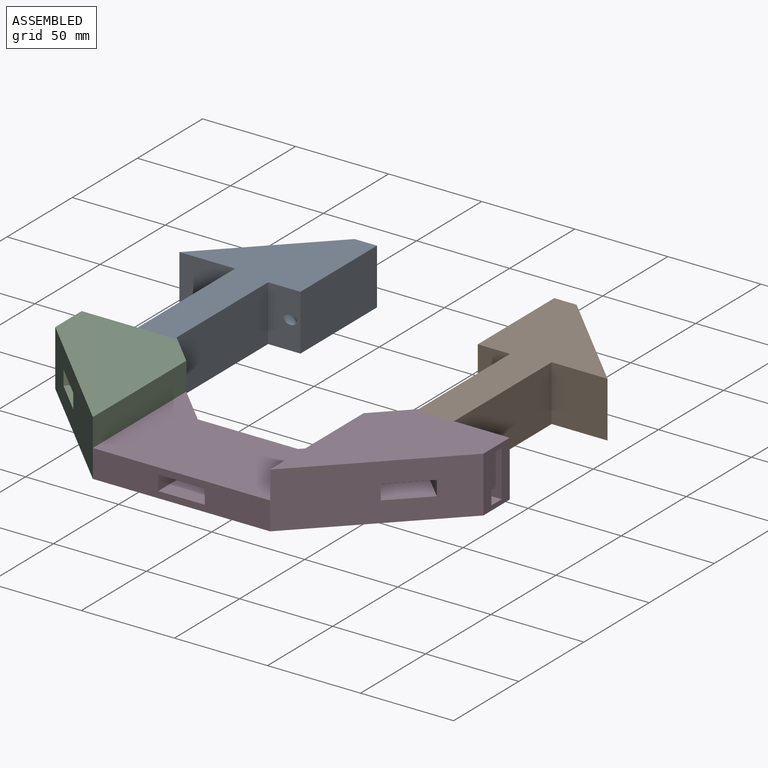
[diagram: assembled view]
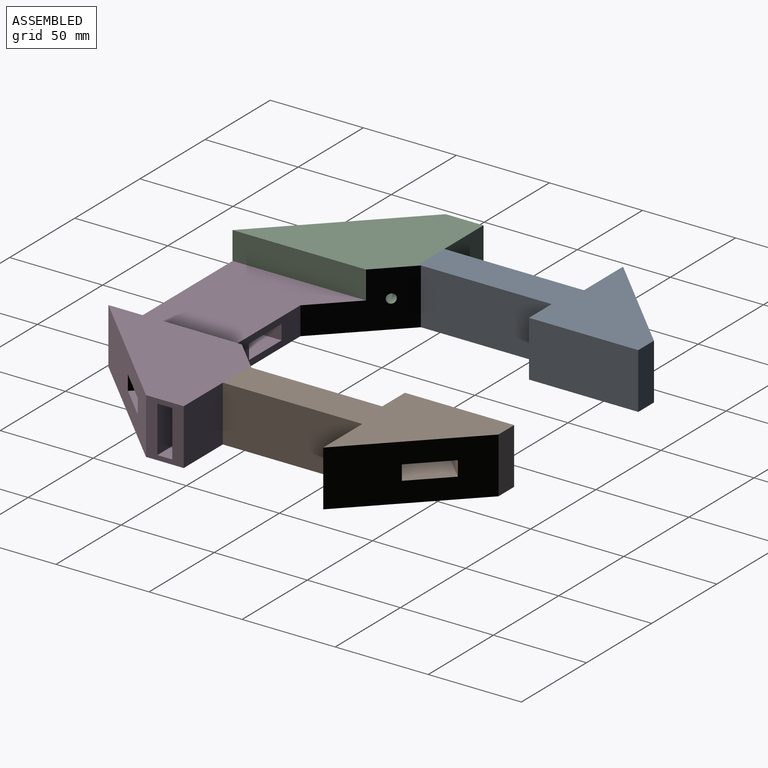
[diagram: assembled view, second angle]
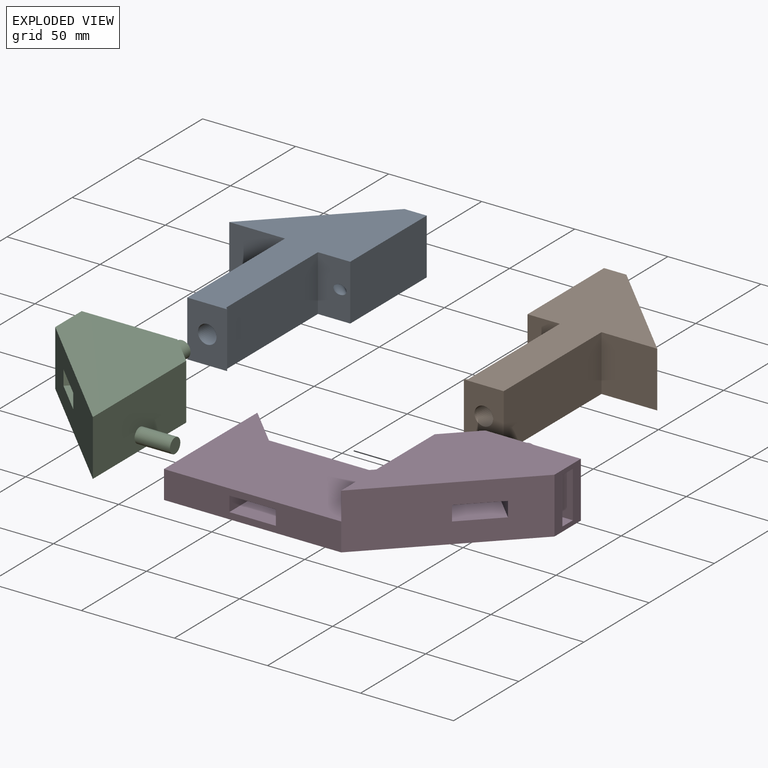
[diagram: exploded view]
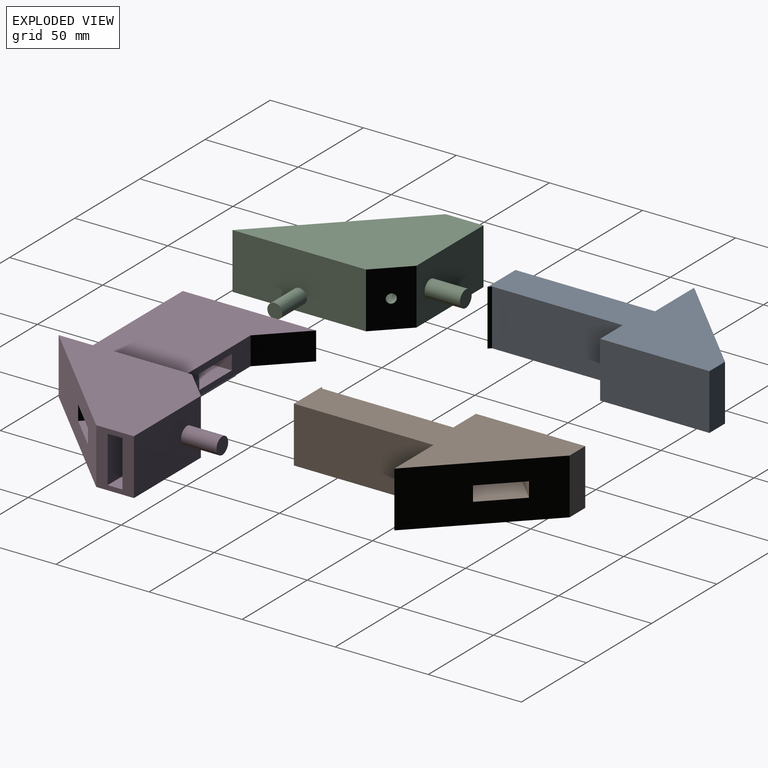
[diagram: exploded view, second angle]
ASSEMBLY  parts=4 mates=3
PART A: 19 faces, bbox 67.4x130.4x30 mm
  f0: plane 130.37x67.37mm, normal (0,0,-1), area 3756.1mm2, adj f1,f2,f4,f5,f6,f13,f14,f15
  f1: plane 55.37x55.37mm, normal (-0.71,0.71,0), area 2149mm2, adj f0,f3,f7,f8,f9,f10,f14,f15
  f2: plane 58.71x30mm, normal (1,0,0), area 1761.3mm2, adj f0,f3,f6,f15
  f3: plane 130.37x67.37mm, normal (0,0,1), area 3756.1mm2, adj f1,f2,f4,f5,f6,f13,f14,f15
  f4: plane 30x1.41mm, normal (0.71,0.71,0), area 59.6mm2, adj f0,f3,f5,f16
  f5: plane 70.25x30mm, normal (1,0,0), area 2107.5mm2, adj f0,f3,f4,f6
  f6: plane 30x17.37mm, normal (0,-1,0), area 493.2mm2, adj f0,f2,f3,f5,f12
  f7: plane 31.82x31.82mm, normal (0,0,-1), area 500mm2, adj f1,f8,f10,f11
  f8: plane 14.14x14.14mm, normal (-0.71,-0.71,0), area 160mm2, adj f1,f7,f9,f11
  f9: plane 31.82x31.82mm, normal (0,0,1), area 500mm2, adj f1,f8,f10,f11
  f10: plane 14.14x14.14mm, normal (0.71,0.71,0), area 160mm2, adj f1,f7,f9,f11
  f11: plane 17.68x17.68mm, normal (-0.71,0.71,0), area 180.4mm2, adj f7,f8,f9,f10,f12
  f12: cylinder r=2.5mm len=23.79mm, axis (-0.71,0.71,0), area 410.2mm2, adj f6,f11
  f13: plane 75x30mm, normal (-1,0,0), area 2250mm2, adj f0,f3,f14,f16
  f14: plane 30x30mm, normal (0,-1,0), area 900mm2, adj f0,f1,f3,f13
  f15: plane 30x12mm, normal (0,1,0), area 360mm2, adj f0,f1,f2,f3
  f16: plane 30x21.41mm, normal (0,-1,0), area 563.6mm2, adj f0,f3,f4,f13,f17
  f17: cylinder r=5mm len=20mm, axis (0,-1,0), area 628.3mm2, adj f16,f18
  f18: plane 10x10mm, normal (0,-1,0), area 78.5mm2, adj f17
PART B: 19 faces, bbox 68.4x131.4x31.1 mm
  f0: plane 17.68x17.68mm, normal (0.71,0.71,0), area 180.4mm2, adj f1,f2,f3,f4,f5
  f1: plane 14.14x14.14mm, normal (-0.71,0.71,0), area 160mm2, adj f0,f2,f4,f7
  f2: plane 31.82x31.82mm, normal (0,0,1), area 500mm2, adj f0,f1,f3,f7
  f3: plane 14.14x14.14mm, normal (0.71,-0.71,0), area 160mm2, adj f0,f2,f4,f7
  f4: plane 31.82x31.82mm, normal (0,0,-1), area 500mm2, adj f0,f1,f3,f7
  f5: cylinder r=2.5mm len=23.77mm, axis (0.71,0.71,0), area 410.2mm2, adj f0,f10
  f6: plane 30x30mm, normal (0,-1,0), area 900mm2, adj f7,f12,f14,f15
  f7: plane 55.37x55.37mm, normal (0.71,0.71,0), area 2149mm2, adj f1,f2,f3,f4,f6,f8,f12,f15
  f8: plane 30x12mm, normal (0,1,0), area 360mm2, adj f7,f9,f12,f15
  f9: plane 58.71x30mm, normal (-1,0,0), area 1761.3mm2, adj f8,f10,f12,f15
  f10: plane 31.05x18.42mm, normal (0,-1,0), area 493.2mm2, adj f5,f9,f11,f12,f15
  f11: plane 70.25x30mm, normal (-1,0,0), area 2107.5mm2, adj f10,f12,f13,f15
  f12: plane 130.37x67.37mm, normal (0,0,-1), area 3756.2mm2, adj f6,f7,f8,f9,f10,f11,f13,f14
  f13: plane 30x1.41mm, normal (-0.71,0.71,0), area 59.6mm2, adj f11,f12,f15,f16
  f14: plane 75x30mm, normal (1,0,0), area 2250mm2, adj f6,f12,f15,f16
  f15: plane 130.37x67.37mm, normal (0,0,1), area 3756.2mm2, adj f6,f7,f8,f9,f10,f11,f13,f14
  f16: plane 30x21.41mm, normal (0,-1,0), area 563.7mm2, adj f12,f13,f14,f15,f17
  f17: cylinder r=5mm len=20mm, axis (0,-1,0), area 628.3mm2, adj f16,f18
  f18: plane 10x10mm, normal (0,-1,0), area 78.5mm2, adj f17
PART C: 23 faces, bbox 86.4x106.6x30 mm
  f0: plane 71.68x30mm, normal (1,0,0), area 2100mm2, adj f17,f18,f19,f20,f21
  f1: plane 9x9mm, normal (0,1,0), area 63.6mm2, adj f3
  f2: plane 25x8mm, normal (-1,0,0), area 180.4mm2, adj f4,f6,f7,f8,f9
  f3: cylinder r=4.5mm len=19mm, axis (0,-1,0), area 537.2mm2, adj f1,f10
  f4: cylinder r=2.5mm len=37.18mm, axis (-1,0,0), area 548.7mm2, adj f2,f11
  f5: plane 17.68x17.68mm, normal (-0.71,-0.71,0), area 180.4mm2, adj f11,f12,f13,f14,f15
  f6: plane 20x8mm, normal (0,0,1), area 160mm2, adj f2,f7,f9,f16
  f7: plane 25x20mm, normal (0,1,0), area 500mm2, adj f2,f6,f8,f16
  f8: plane 20x8mm, normal (0,0,-1), area 160mm2, adj f2,f7,f9,f16
  f9: plane 25x20mm, normal (0,-1,0), area 500mm2, adj f2,f6,f8,f16
  f10: plane 51.41x30mm, normal (0,1,0), area 1478.6mm2, adj f3,f16,f17,f19,f20
  f11: cylinder r=2.5mm len=25.23mm, axis (-0.71,-0.71,0), area 446.6mm2, adj f4,f5,f19
  f12: plane 14.14x14.14mm, normal (0.71,-0.71,0), area 160mm2, adj f5,f13,f15,f18
  f13: plane 31.82x31.82mm, normal (0,0,1), area 500mm2, adj f5,f12,f14,f18
  f14: plane 14.14x14.14mm, normal (-0.71,0.71,0), area 160mm2, adj f5,f13,f15,f18
  f15: plane 31.82x31.82mm, normal (0,0,-1), area 500mm2, adj f5,f12,f14,f18
  f16: plane 30x20.27mm, normal (-1,0,0), area 408.1mm2, adj f6,f7,f8,f9,f10,f17,f18,f20
  f17: plane 87.63x67.37mm, normal (0,0,1), area 3507.1mm2, adj f0,f10,f16,f18,f19
  f18: plane 67.37x67.37mm, normal (-0.71,-0.71,0), area 2658.1mm2, adj f0,f12,f13,f14,f15,f16,f17,f20
  f19: plane 30x15.96mm, normal (0.71,0.71,0), area 657.4mm2, adj f0,f10,f11,f17,f20
  f20: plane 87.63x67.37mm, normal (0,0,-1), area 3507.1mm2, adj f0,f10,f16,f18,f19
  f21: cylinder r=4mm len=19mm, axis (-1,0,0), area 477.5mm2, adj f0,f22
  f22: plane 8x8mm, normal (1,0,0), area 50.3mm2, adj f21
PART D: 33 faces, bbox 162.6x106.6x30 mm
  f0: plane 87.63x67.37mm, normal (0,0,1), area 3507.1mm2, adj f1,f15,f16,f17,f18
  f1: plane 36.67x36.67mm, normal (-0.71,0.71,0), area 1096.8mm2, adj f0,f2,f14,f16,f18,f22,f23
  f2: plane 162.63x87.63mm, normal (0,0,-1), area 8791.5mm2, adj f1,f15,f16,f17,f23,f24,f27,f29
  f3: plane 25x8mm, normal (1,0,0), area 180.4mm2, adj f4,f6,f7,f8,f9
  f4: cylinder r=2.5mm len=37.18mm, axis (1,0,0), area 548.7mm2, adj f3,f14
  f5: plane 17.68x17.68mm, normal (0.71,-0.71,0), area 180.4mm2, adj f10,f11,f12,f13,f14
  f6: plane 20x8mm, normal (0,0,-1), area 160mm2, adj f3,f7,f9,f15
  f7: plane 25x20mm, normal (0,1,0), area 500mm2, adj f3,f6,f8,f15
  f8: plane 20x8mm, normal (0,0,1), area 160mm2, adj f3,f7,f9,f15
  f9: plane 25x20mm, normal (0,-1,0), area 500mm2, adj f3,f6,f8,f15
  f10: plane 14.14x14.14mm, normal (0.71,0.71,0), area 160mm2, adj f5,f11,f13,f17
  f11: plane 31.82x31.82mm, normal (0,0,1), area 500mm2, adj f5,f10,f12,f17
  f12: plane 14.14x14.14mm, normal (-0.71,-0.71,0), area 160mm2, adj f5,f11,f13,f17
  f13: plane 31.82x31.82mm, normal (0,0,-1), area 500mm2, adj f5,f10,f12,f17
  f14: cylinder r=2.5mm len=25.23mm, axis (0.71,-0.71,0), area 446.6mm2, adj f1,f4,f5
  f15: plane 30x20.27mm, normal (1,0,0), area 408.1mm2, adj f0,f2,f6,f7,f8,f9,f16,f17
  f16: plane 51.41x30mm, normal (0,1,0), area 1478.6mm2, adj f0,f1,f2,f15,f25
  f17: plane 67.37x67.37mm, normal (0.71,-0.71,0), area 2658.1mm2, adj f0,f2,f10,f11,f12,f13,f15,f18
  f18: plane 71.68x15mm, normal (-1,0,0), area 1075.1mm2, adj f0,f1,f17,f22
  f19: plane 50.96x8mm, normal (-1,0,0), area 407.7mm2, adj f20,f21,f23,f24
  f20: plane 50.96x25mm, normal (0,0,-1), area 1274.1mm2, adj f19,f23,f24,f28,f29
  f21: plane 50.96x25mm, normal (0,0,1), area 1274.1mm2, adj f19,f23,f24,f28,f29
  f22: plane 95.27x71.68mm, normal (0,0,1), area 5284.3mm2, adj f1,f18,f23,f24,f27,f29,f30
  f23: plane 26.92x15mm, normal (0,1,0), area 303.8mm2, adj f1,f2,f19,f20,f21,f22,f29
  f24: plane 95.27x15mm, normal (0,-1,0), area 1229mm2, adj f2,f17,f19,f20,f21,f22,f28,f30
  f25: cylinder r=4.5mm len=19mm, axis (0,-1,0), area 537.2mm2, adj f16,f26
  f26: plane 9x9mm, normal (0,1,0), area 63.6mm2, adj f25
  f27: plane 20.71x20.71mm, normal (0.71,0.71,0), area 439.4mm2, adj f2,f22,f29,f30
  f28: plane 50.96x8mm, normal (1,0,0), area 407.7mm2, adj f20,f21,f24,f29
  f29: plane 26.92x15mm, normal (0,1,0), area 303.8mm2, adj f2,f20,f21,f22,f23,f27,f28
  f30: plane 71.68x15mm, normal (-1,0,0), area 1011.5mm2, adj f2,f22,f24,f27,f31
  f31: cylinder r=4.5mm len=20mm, axis (-1,0,0), area 565.5mm2, adj f30,f32
  f32: plane 9x9mm, normal (-1,0,0), area 63.6mm2, adj f31
PLACE A t=(129.04,-28.21,-48.37)mm
PLACE B t=(-70.97,-28.21,-48.37)mm
PLACE C t=(129.03,171.79,-48.37)mm
PLACE D t=(-70.97,171.79,-48.37)mm
MATE fastened C.f21 <-> D.f31  axis (-1,0,0) through (-18.6,-7.21,-40.87)mm
MATE fastened A.f17 <-> C.f3  axis (0,-1,0) through (-45.26,44.43,-33.37)mm
MATE fastened D.f25 <-> B.f17  axis (0,-1,0) through (103.33,44.43,-33.37)mm
